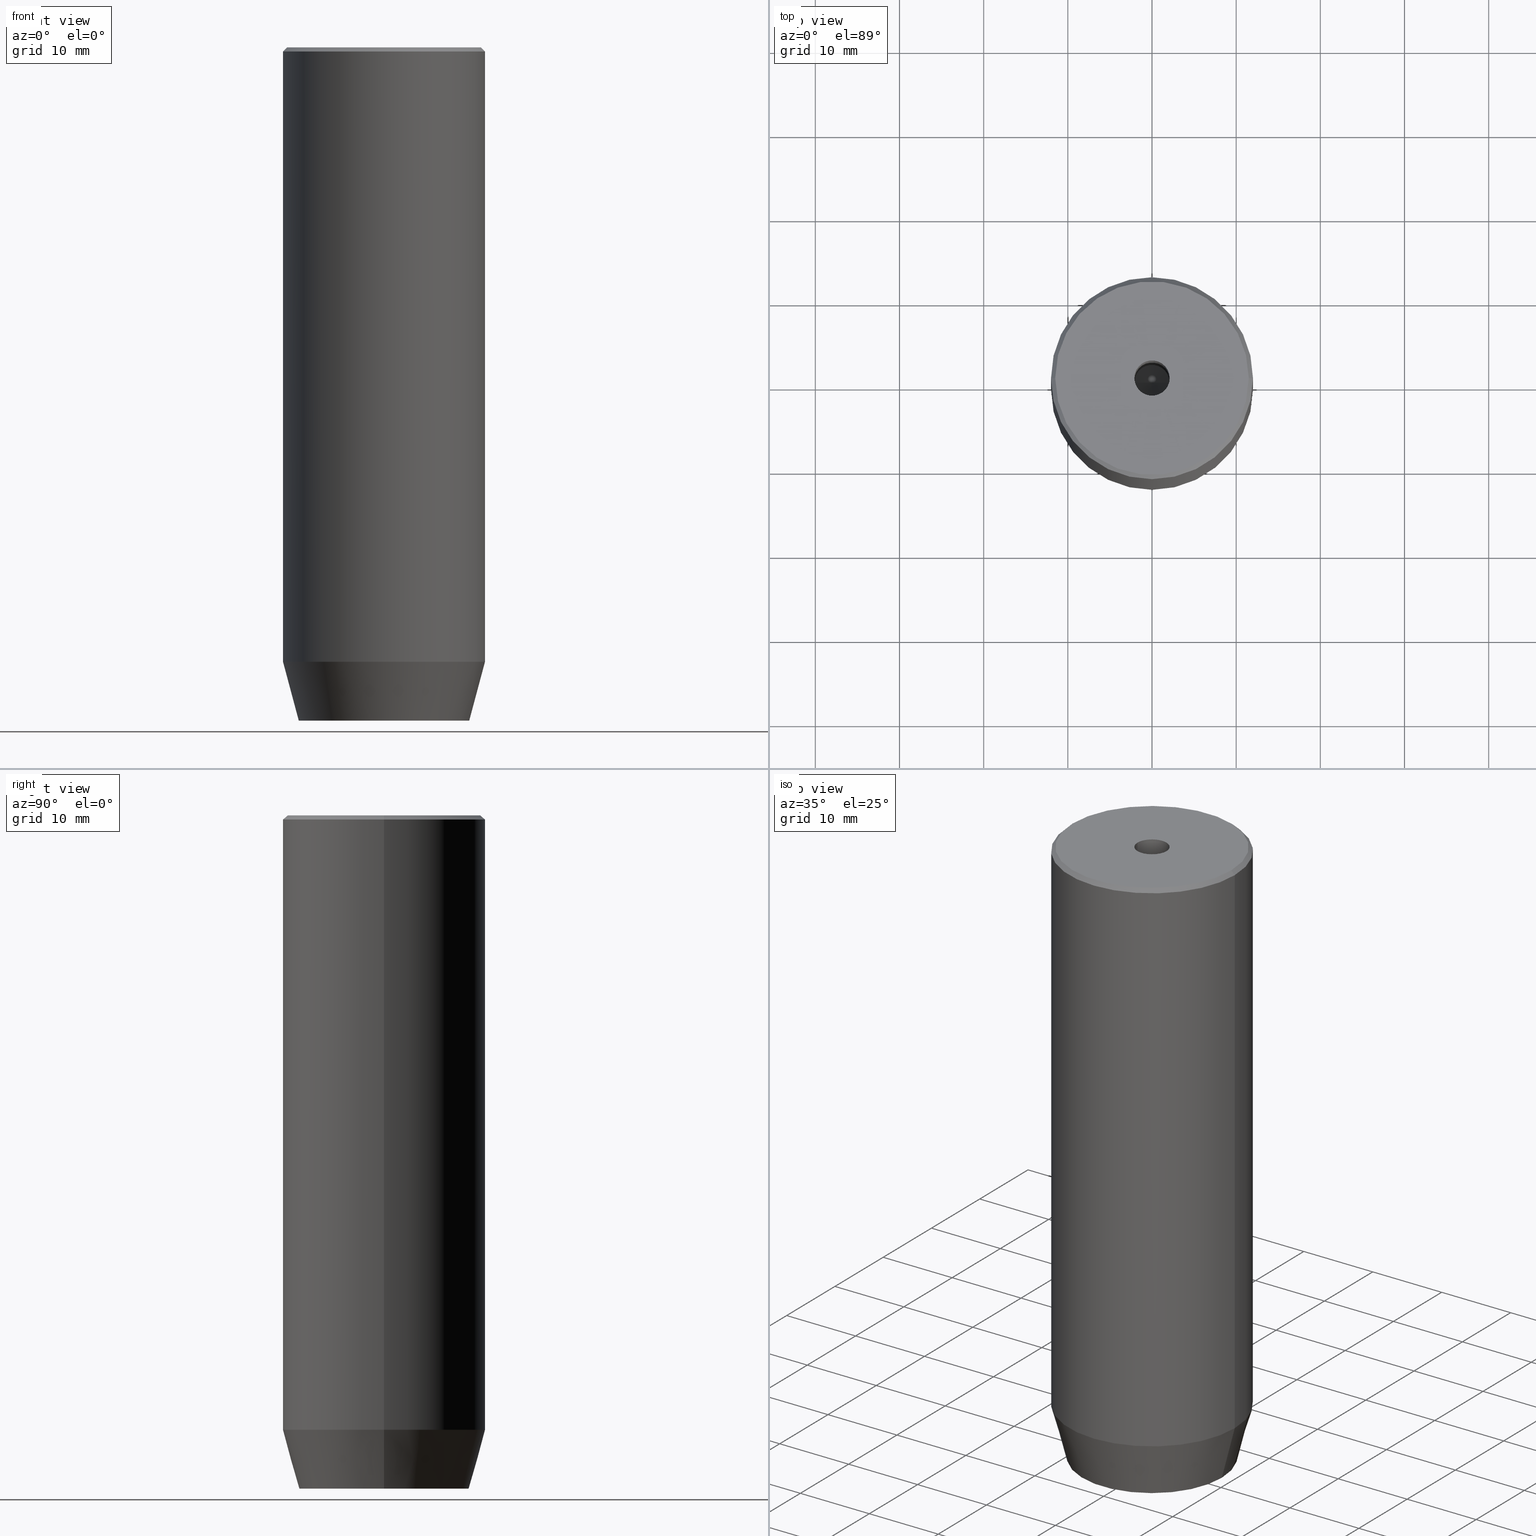
[diagram: canonical four-view strip — front | top / right | iso, engineering-drawing reading convention]
A machine part, canonical four-view strip (front | top / right | iso — engineering-drawing reading convention). The complete STEP part file that produces these views, byte-faithful:
ISO-10303-21;
HEADER;
FILE_DESCRIPTION (( 'STEP AP203' ),
    '1' );
FILE_NAME ('f297.STEP',
    '2024-01-02T17:16:45',
    ( '' ),
    ( '' ),
    'SwSTEP 2.0',
    'SolidWorks 2019',
    '' );
FILE_SCHEMA (( 'CONFIG_CONTROL_DESIGN' ));
ENDSEC;

DATA;
#1 = CARTESIAN_POINT ( 'NONE',  ( 0.000000000000000000, 0.000000000000000000, 0.000000000000000000 ) ) ;
#2 = LINE ( 'NONE', #273, #563 ) ;
#3 = EDGE_LOOP ( 'NONE', ( #304, #363 ) ) ;
#4 = FACE_OUTER_BOUND ( 'NONE', #197, .T. ) ;
#5 = VECTOR ( 'NONE', #537, 999.9999999999998863 ) ;
#6 = DIRECTION ( 'NONE',  ( 1.000000000000000000, 0.000000000000000000, 0.000000000000000000 ) ) ;
#7 = ADVANCED_FACE ( 'NONE', ( #344 ), #295, .F. ) ;
#8 = CC_DESIGN_PERSON_AND_ORGANIZATION_ASSIGNMENT ( #240, #101, ( #432 ) ) ;
#9 = DIRECTION ( 'NONE',  ( -0.000000000000000000, -0.000000000000000000, 1.000000000000000000 ) ) ;
#10 = VECTOR ( 'NONE', #245, 1000.000000000000000 ) ;
#11 = VECTOR ( 'NONE', #541, 1000.000000000000000 ) ;
#12 = LOCAL_TIME ( 18, 16, 45.00000000000000000, #557 ) ;
#13 = PERSON_AND_ORGANIZATION_ROLE ( 'classification_officer' ) ;
#14 = DIRECTION ( 'NONE',  ( 0.8660254037844385966, -0.5000000000000001110, 0.000000000000000000 ) ) ;
#15 = PERSON_AND_ORGANIZATION_ROLE ( 'creator' ) ;
#16 = ORIENTED_EDGE ( 'NONE', *, *, #45, .F. ) ;
#17 = DIRECTION ( 'NONE',  ( 1.000000000000000000, 0.000000000000000000, 0.000000000000000000 ) ) ;
#18 = PERSON_AND_ORGANIZATION ( #511, #53 ) ;
#19 = ORIENTED_EDGE ( 'NONE', *, *, #395, .T. ) ;
#20 = CARTESIAN_POINT ( 'NONE',  ( -2.000000000000000888, -3.464101615137754386, -77.20000000000001705 ) ) ;
#21 = VECTOR ( 'NONE', #281, 1000.000000000000114 ) ;
#22 = APPROVAL_ROLE ( '' ) ;
#23 = ORIENTED_EDGE ( 'NONE', *, *, #370, .T. ) ;
#24 = DIRECTION ( 'NONE',  ( -0.8660254037844385966, 0.5000000000000001110, 0.000000000000000000 ) ) ;
#25 = ORIENTED_EDGE ( 'NONE', *, *, #501, .T. ) ;
#26 = DIRECTION ( 'NONE',  ( -0.8660254037844384856, 0.5000000000000002220, 0.000000000000000000 ) ) ;
#27 = EDGE_LOOP ( 'NONE', ( #191, #413, #300, #549 ) ) ;
#28 = CARTESIAN_POINT ( 'NONE',  ( 4.000000000000000000, -2.309401076758502480, -77.20000000000001705 ) ) ;
#29 = CIRCLE ( 'NONE', #478, 12.00000000000000000 ) ;
#30 = CARTESIAN_POINT ( 'NONE',  ( -2.000000000000000888, -3.464101615137754386, -77.20000000000001705 ) ) ;
#31 = CIRCLE ( 'NONE', #378, 2.099999999999998757 ) ;
#32 = LINE ( 'NONE', #392, #205 ) ;
#33 = DIRECTION ( 'NONE',  ( 1.000000000000000000, 0.000000000000000000, 0.000000000000000000 ) ) ;
#34 = CARTESIAN_POINT ( 'NONE',  ( 0.000000000000000000, 0.000000000000000000, 0.000000000000000000 ) ) ;
#35 = ORIENTED_EDGE ( 'NONE', *, *, #430, .F. ) ;
#36 = DIRECTION ( 'NONE',  ( -0.000000000000000000, -0.000000000000000000, -1.000000000000000000 ) ) ;
#37 = VERTEX_POINT ( 'NONE', #348 ) ;
#38 = FACE_OUTER_BOUND ( 'NONE', #200, .T. ) ;
#39 = ORIENTED_EDGE ( 'NONE', *, *, #501, .F. ) ;
#40 = FACE_BOUND ( 'NONE', #351, .T. ) ;
#41 =( NAMED_UNIT ( * ) PLANE_ANGLE_UNIT ( ) SI_UNIT ( $, .RADIAN. ) );
#42 = ORIENTED_EDGE ( 'NONE', *, *, #465, .F. ) ;
#43 = LINE ( 'NONE', #504, #420 ) ;
#44 = ORIENTED_EDGE ( 'NONE', *, *, #121, .T. ) ;
#45 = EDGE_CURVE ( 'NONE', #462, #450, #527, .T. ) ;
#46 = CIRCLE ( 'NONE', #357, 11.49999999999999467 ) ;
#47 = ORIENTED_EDGE ( 'NONE', *, *, #372, .F. ) ;
#48 = EDGE_CURVE ( 'NONE', #540, #493, #112, .T. ) ;
#49 = CARTESIAN_POINT ( 'NONE',  ( 0.000000000000000000, 0.000000000000000000, -73.00000000000001421 ) ) ;
#50 = DIRECTION ( 'NONE',  ( -0.000000000000000000, -0.000000000000000000, 1.000000000000000000 ) ) ;
#51 = CARTESIAN_POINT ( 'NONE',  ( -12.00000000000000000, 1.469576158976823947E-15, -0.5000000000000056621 ) ) ;
#52 = CONICAL_SURFACE ( 'NONE', #314, 11.49999999999999467, 0.7853981633974482790 ) ;
#53 = ORGANIZATION ( 'NEUR�EN�', 'NEUR�EN�', '' ) ;
#54 = COORDINATED_UNIVERSAL_TIME_OFFSET ( 1, 0, .AHEAD. ) ;
#55 = ORIENTED_EDGE ( 'NONE', *, *, #124, .T. ) ;
#56 = CARTESIAN_POINT ( 'NONE',  ( 2.000000000000000444, 3.464101615137754386, -77.20000000000001705 ) ) ;
#57 = SHAPE_DEFINITION_REPRESENTATION ( #584, #308 ) ;
#58 = ORIENTED_EDGE ( 'NONE', *, *, #48, .T. ) ;
#59 = LINE ( 'NONE', #56, #73 ) ;
#60 = CALENDAR_DATE ( 2024, 2, 1 ) ;
#61 = EDGE_LOOP ( 'NONE', ( #120, #39, #297, #352 ) ) ;
#62 = FACE_OUTER_BOUND ( 'NONE', #347, .T. ) ;
#63 = CC_DESIGN_PERSON_AND_ORGANIZATION_ASSIGNMENT ( #325, #423, ( #432 ) ) ;
#64 = VECTOR ( 'NONE', #26, 1000.000000000000114 ) ;
#65 = APPROVAL_STATUS ( 'not_yet_approved' ) ;
#66 = EDGE_CURVE ( 'NONE', #249, #104, #216, .T. ) ;
#67 = ORIENTED_EDGE ( 'NONE', *, *, #268, .T. ) ;
#68 = CARTESIAN_POINT ( 'NONE',  ( -4.000000000000000000, -2.309401076758503368, -77.20000000000001705 ) ) ;
#69 = LINE ( 'NONE', #358, #367 ) ;
#70 = DIRECTION ( 'NONE',  ( -0.000000000000000000, -0.000000000000000000, 1.000000000000000000 ) ) ;
#71 = DIRECTION ( 'NONE',  ( 0.000000000000000000, 0.000000000000000000, -1.000000000000000000 ) ) ;
#72 = PLANE ( 'NONE',  #108 ) ;
#73 = VECTOR ( 'NONE', #14, 1000.000000000000000 ) ;
#74 = CARTESIAN_POINT ( 'NONE',  ( 0.000000000000000000, 0.000000000000000000, -30.00000000000000000 ) ) ;
#75 = DIRECTION ( 'NONE',  ( -0.000000000000000000, -0.000000000000000000, -1.000000000000000000 ) ) ;
#76 = VERTEX_POINT ( 'NONE', #443 ) ;
#77 = DIRECTION ( 'NONE',  ( -1.000000000000000000, 0.000000000000000000, 0.000000000000000000 ) ) ;
#78 = PLANE ( 'NONE',  #402 ) ;
#79 = CARTESIAN_POINT ( 'NONE',  ( 0.000000000000000000, 0.000000000000000000, 0.000000000000000000 ) ) ;
#80 = EDGE_LOOP ( 'NONE', ( #471, #114, #144, #133 ) ) ;
#81 = DIRECTION ( 'NONE',  ( -0.000000000000000000, -0.000000000000000000, 1.000000000000000000 ) ) ;
#82 = AXIS2_PLACEMENT_3D ( 'NONE', #494, #81, #452 ) ;
#83 = CARTESIAN_POINT ( 'NONE',  ( -12.00000000000000000, 1.469576158976823947E-15, 0.000000000000000000 ) ) ;
#84 = SECURITY_CLASSIFICATION ( '', '', #559 ) ;
#85 = ORIENTED_EDGE ( 'NONE', *, *, #66, .F. ) ;
#86 = LINE ( 'NONE', #322, #343 ) ;
#87 = ORIENTED_EDGE ( 'NONE', *, *, #321, .F. ) ;
#88 = ADVANCED_FACE ( 'NONE', ( #254 ), #78, .F. ) ;
#89 = CARTESIAN_POINT ( 'NONE',  ( -2.000000000000000000, 3.464101615137754830, -77.20000000000001705 ) ) ;
#90 = ORIENTED_EDGE ( 'NONE', *, *, #522, .T. ) ;
#91 = EDGE_CURVE ( 'NONE', #428, #76, #576, .T. ) ;
#92 = CARTESIAN_POINT ( 'NONE',  ( -4.000000000000000000, 2.309401076758503368, -77.20000000000001705 ) ) ;
#93 = VECTOR ( 'NONE', #113, 1000.000000000000000 ) ;
#94 = ORIENTED_EDGE ( 'NONE', *, *, #395, .F. ) ;
#95 = APPLICATION_CONTEXT ( 'configuration controlled 3d designs of mechanical parts and assemblies' ) ;
#96 = DIRECTION ( 'NONE',  ( 1.000000000000000000, 0.000000000000000000, 0.000000000000000000 ) ) ;
#97 = CARTESIAN_POINT ( 'NONE',  ( 4.336808689942017736E-16, -4.618802153517006737, -77.20000000000001705 ) ) ;
#98 = DIRECTION ( 'NONE',  ( 0.000000000000000000, 0.000000000000000000, 1.000000000000000000 ) ) ;
#99 = LINE ( 'NONE', #565, #21 ) ;
#100 = VECTOR ( 'NONE', #517, 1000.000000000000114 ) ;
#101 = PERSON_AND_ORGANIZATION_ROLE ( 'creator' ) ;
#102 = EDGE_LOOP ( 'NONE', ( #182, #67, #269 ) ) ;
#103 = LINE ( 'NONE', #284, #272 ) ;
#104 = VERTEX_POINT ( 'NONE', #580 ) ;
#105 = PLANE ( 'NONE',  #431 ) ;
#106 = DIRECTION ( 'NONE',  ( 1.000000000000000000, 0.000000000000000000, 0.000000000000000000 ) ) ;
#107 = ORIENTED_EDGE ( 'NONE', *, *, #275, .T. ) ;
#108 = AXIS2_PLACEMENT_3D ( 'NONE', #581, #441, #359 ) ;
#109 = ORIENTED_EDGE ( 'NONE', *, *, #91, .T. ) ;
#110 = LINE ( 'NONE', #579, #186 ) ;
#111 = EDGE_CURVE ( 'NONE', #567, #524, #545, .T. ) ;
#112 = LINE ( 'NONE', #213, #195 ) ;
#113 = DIRECTION ( 'NONE',  ( 0.8571673007021113344, 0.000000000000000000, 0.5150380749100558209 ) ) ;
#114 = ORIENTED_EDGE ( 'NONE', *, *, #562, .T. ) ;
#115 = FACE_OUTER_BOUND ( 'NONE', #324, .T. ) ;
#116 = AXIS2_PLACEMENT_3D ( 'NONE', #1, #176, #263 ) ;
#117 = DIRECTION ( 'NONE',  ( -0.000000000000000000, -0.000000000000000000, 1.000000000000000000 ) ) ;
#118 = DIRECTION ( 'NONE',  ( -1.000000000000000000, 0.000000000000000000, 0.000000000000000000 ) ) ;
#119 = PRODUCT ( 'f297', 'f297', '', ( #384 ) ) ;
#120 = ORIENTED_EDGE ( 'NONE', *, *, #140, .F. ) ;
#121 = EDGE_CURVE ( 'NONE', #366, #153, #361, .T. ) ;
#122 = ORIENTED_EDGE ( 'NONE', *, *, #520, .F. ) ;
#123 = DIRECTION ( 'NONE',  ( 1.000000000000000000, 0.000000000000000000, 0.000000000000000000 ) ) ;
#124 = EDGE_CURVE ( 'NONE', #290, #225, #447, .T. ) ;
#125 = FACE_OUTER_BOUND ( 'NONE', #27, .T. ) ;
#126 = DIRECTION ( 'NONE',  ( -0.000000000000000000, -0.000000000000000000, 1.000000000000000000 ) ) ;
#127 = VERTEX_POINT ( 'NONE', #398 ) ;
#128 = VECTOR ( 'NONE', #400, 1000.000000000000000 ) ;
#129 = CARTESIAN_POINT ( 'NONE',  ( -4.000000000000000000, -2.309401076758503368, -77.20000000000001705 ) ) ;
#130 = AXIS2_PLACEMENT_3D ( 'NONE', #136, #126, #318 ) ;
#131 = ORIENTED_EDGE ( 'NONE', *, *, #222, .T. ) ;
#132 = DIRECTION ( 'NONE',  ( 1.000000000000000000, 0.000000000000000000, 0.000000000000000000 ) ) ;
#133 = ORIENTED_EDGE ( 'NONE', *, *, #426, .T. ) ;
#134 = CARTESIAN_POINT ( 'NONE',  ( 12.00000000000000000, 0.000000000000000000, -73.00000000000001421 ) ) ;
#135 = ORIENTED_EDGE ( 'NONE', *, *, #48, .F. ) ;
#136 = CARTESIAN_POINT ( 'NONE',  ( 0.000000000000000000, 0.000000000000000000, -73.00000000000001421 ) ) ;
#137 = VECTOR ( 'NONE', #237, 1000.000000000000000 ) ;
#138 = CALENDAR_DATE ( 2024, 2, 1 ) ;
#139 = PRODUCT_RELATED_PRODUCT_CATEGORY ( 'detail', '', ( #119 ) ) ;
#140 = EDGE_CURVE ( 'NONE', #256, #104, #69, .T. ) ;
#141 = DIRECTION ( 'NONE',  ( 0.000000000000000000, 1.000000000000000000, 0.000000000000000000 ) ) ;
#142 = CC_DESIGN_PERSON_AND_ORGANIZATION_ASSIGNMENT ( #474, #15, ( #455 ) ) ;
#143 = APPROVAL_ROLE ( '' ) ;
#144 = ORIENTED_EDGE ( 'NONE', *, *, #473, .T. ) ;
#145 = LINE ( 'NONE', #20, #64 ) ;
#146 = VECTOR ( 'NONE', #391, 1000.000000000000114 ) ;
#147 = CC_DESIGN_SECURITY_CLASSIFICATION ( #84, ( #432 ) ) ;
#148 = APPROVAL ( #65, 'NEUR�EN�' ) ;
#149 = DATE_AND_TIME ( #556, #332 ) ;
#150 = EDGE_CURVE ( 'NONE', #462, #540, #578, .T. ) ;
#151 = DIRECTION ( 'NONE',  ( 1.000000000000000000, 0.000000000000000000, 0.000000000000000000 ) ) ;
#152 = APPROVAL_DATE_TIME ( #149, #346 ) ;
#153 = VERTEX_POINT ( 'NONE', #572 ) ;
#154 = DIRECTION ( 'NONE',  ( 0.000000000000000000, 0.000000000000000000, -1.000000000000000000 ) ) ;
#155 = ORIENTED_EDGE ( 'NONE', *, *, #189, .T. ) ;
#156 = DIRECTION ( 'NONE',  ( 0.000000000000000000, 0.000000000000000000, 1.000000000000000000 ) ) ;
#157 = AXIS2_PLACEMENT_3D ( 'NONE', #568, #154, #521 ) ;
#158 = LOCAL_TIME ( 18, 16, 45.00000000000000000, #54 ) ;
#159 = ADVANCED_FACE ( 'NONE', ( #364 ), #409, .T. ) ;
#160 = ORIENTED_EDGE ( 'NONE', *, *, #189, .F. ) ;
#161 = PLANE ( 'NONE',  #525 ) ;
#162 = ADVANCED_FACE ( 'NONE', ( #125 ), #309, .T. ) ;
#163 = CARTESIAN_POINT ( 'NONE',  ( 2.000000000000000888, -3.464101615137754386, -77.20000000000001705 ) ) ;
#164 = CARTESIAN_POINT ( 'NONE',  ( 0.000000000000000000, 0.000000000000000000, -80.00000000000001421 ) ) ;
#165 = DIRECTION ( 'NONE',  ( -0.000000000000000000, -0.000000000000000000, -1.000000000000000000 ) ) ;
#166 = FACE_OUTER_BOUND ( 'NONE', #373, .T. ) ;
#167 = ORIENTED_EDGE ( 'NONE', *, *, #310, .T. ) ;
#168 = VECTOR ( 'NONE', #577, 1000.000000000000000 ) ;
#169 = DIRECTION ( 'NONE',  ( 0.7071067811865474617, 8.659560562354932858E-17, -0.7071067811865474617 ) ) ;
#170 = APPROVAL_PERSON_ORGANIZATION ( #18, #328, #279 ) ;
#171 = CARTESIAN_POINT ( 'NONE',  ( 2.000000000000000888, -3.464101615137754386, -77.20000000000001705 ) ) ;
#172 = ADVANCED_FACE ( 'NONE', ( #40, #220 ), #338, .T. ) ;
#173 = ORIENTED_EDGE ( 'NONE', *, *, #302, .F. ) ;
#174 = DIRECTION ( 'NONE',  ( -0.000000000000000000, -0.000000000000000000, -1.000000000000000000 ) ) ;
#175 = DIRECTION ( 'NONE',  ( 0.8660254037844385966, -0.5000000000000001110, 0.000000000000000000 ) ) ;
#176 = DIRECTION ( 'NONE',  ( -0.000000000000000000, -0.000000000000000000, 1.000000000000000000 ) ) ;
#177 = DIRECTION ( 'NONE',  ( -0.000000000000000000, -0.000000000000000000, 1.000000000000000000 ) ) ;
#178 = ORIENTED_EDGE ( 'NONE', *, *, #121, .F. ) ;
#179 = VECTOR ( 'NONE', #418, 1000.000000000000000 ) ;
#180 = DIRECTION ( 'NONE',  ( 0.000000000000000000, 1.000000000000000000, 0.000000000000000000 ) ) ;
#181 = ADVANCED_FACE ( 'NONE', ( #429 ), #280, .F. ) ;
#182 = ORIENTED_EDGE ( 'NONE', *, *, #419, .F. ) ;
#183 = DIRECTION ( 'NONE',  ( 1.000000000000000000, 0.000000000000000000, 0.000000000000000000 ) ) ;
#184 = ORIENTED_EDGE ( 'NONE', *, *, #520, .T. ) ;
#185 = DIRECTION ( 'NONE',  ( 1.000000000000000000, 0.000000000000000000, 0.000000000000000000 ) ) ;
#186 = VECTOR ( 'NONE', #36, 1000.000000000000000 ) ;
#187 = CIRCLE ( 'NONE', #130, 12.00000000000000000 ) ;
#188 = CARTESIAN_POINT ( 'NONE',  ( 4.000000000000000000, -2.309401076758502480, -77.20000000000001705 ) ) ;
#189 = EDGE_CURVE ( 'NONE', #225, #551, #145, .T. ) ;
#190 = PERSON_AND_ORGANIZATION ( #511, #53 ) ;
#191 = ORIENTED_EDGE ( 'NONE', *, *, #552, .T. ) ;
#192 = DIRECTION ( 'NONE',  ( 0.5000000000000001110, 0.8660254037844385966, -0.000000000000000000 ) ) ;
#193 = ORIENTED_EDGE ( 'NONE', *, *, #329, .T. ) ;
#194 = FACE_OUTER_BOUND ( 'NONE', #500, .T. ) ;
#195 = VECTOR ( 'NONE', #174, 1000.000000000000000 ) ;
#196 = PERSON_AND_ORGANIZATION ( #511, #53 ) ;
#197 = EDGE_LOOP ( 'NONE', ( #244, #223, #305, #371 ) ) ;
#198 = DIRECTION ( 'NONE',  ( 0.000000000000000000, 0.000000000000000000, -1.000000000000000000 ) ) ;
#199 = CC_DESIGN_PERSON_AND_ORGANIZATION_ASSIGNMENT ( #510, #238, ( #119 ) ) ;
#200 = EDGE_LOOP ( 'NONE', ( #25, #339 ) ) ;
#201 = CARTESIAN_POINT ( 'NONE',  ( -12.00000000000000000, 1.469576158976823947E-15, -73.00000000000001421 ) ) ;
#202 = EDGE_CURVE ( 'NONE', #256, #127, #468, .T. ) ;
#203 = ORIENTED_EDGE ( 'NONE', *, *, #531, .F. ) ;
#204 = DIRECTION ( 'NONE',  ( 0.2588190451025209060, 0.000000000000000000, 0.9659258262890682012 ) ) ;
#205 = VECTOR ( 'NONE', #399, 1000.000000000000000 ) ;
#206 = LOCAL_TIME ( 18, 16, 45.00000000000000000, #515 ) ;
#207 = DIRECTION ( 'NONE',  ( -0.5000000000000003331, -0.8660254037844385966, 0.000000000000000000 ) ) ;
#208 = FACE_OUTER_BOUND ( 'NONE', #259, .T. ) ;
#209 = CC_DESIGN_DATE_AND_TIME_ASSIGNMENT ( #326, #427, ( #455 ) ) ;
#210 = DIRECTION ( 'NONE',  ( -0.8660254037844384856, -0.5000000000000002220, 0.000000000000000000 ) ) ;
#211 = DIRECTION ( 'NONE',  ( 0.000000000000000000, 0.000000000000000000, -1.000000000000000000 ) ) ;
#212 = ORIENTED_EDGE ( 'NONE', *, *, #202, .F. ) ;
#213 = CARTESIAN_POINT ( 'NONE',  ( 0.000000000000000000, 4.618802153517006737, -77.20000000000001705 ) ) ;
#214 = LINE ( 'NONE', #28, #168 ) ;
#215 = ORIENTED_EDGE ( 'NONE', *, *, #45, .T. ) ;
#216 = CIRCLE ( 'NONE', #449, 12.00000000000000000 ) ;
#217 = CIRCLE ( 'NONE', #523, 10.12435565298213902 ) ;
#218 = ORIENTED_EDGE ( 'NONE', *, *, #140, .T. ) ;
#219 = LINE ( 'NONE', #298, #414 ) ;
#220 = FACE_OUTER_BOUND ( 'NONE', #307, .T. ) ;
#221 = LINE ( 'NONE', #365, #514 ) ;
#222 = EDGE_CURVE ( 'NONE', #540, #337, #59, .T. ) ;
#223 = ORIENTED_EDGE ( 'NONE', *, *, #372, .T. ) ;
#224 = DIRECTION ( 'NONE',  ( -0.5000000000000000000, 0.8660254037844387076, 0.000000000000000000 ) ) ;
#225 = VERTEX_POINT ( 'NONE', #97 ) ;
#226 = VECTOR ( 'NONE', #75, 1000.000000000000000 ) ;
#227 = CARTESIAN_POINT ( 'NONE',  ( 2.099999999999998757, 0.000000000000000000, -1.990051048614449116E-16 ) ) ;
#228 = EDGE_LOOP ( 'NONE', ( #406, #355, #90, #42 ) ) ;
#229 = ADVANCED_FACE ( 'NONE', ( #194 ), #376, .F. ) ;
#230 = LINE ( 'NONE', #83, #11 ) ;
#231 = CALENDAR_DATE ( 2024, 2, 1 ) ;
#232 = AXIS2_PLACEMENT_3D ( 'NONE', #407, #255, #526 ) ;
#233 = CC_DESIGN_APPROVAL ( #328, ( #84 ) ) ;
#234 = CARTESIAN_POINT ( 'NONE',  ( 11.49999999999999467, 1.438959988998139766E-15, 0.000000000000000000 ) ) ;
#235 = DATE_AND_TIME ( #566, #158 ) ;
#236 = ORIENTED_EDGE ( 'NONE', *, *, #124, .F. ) ;
#237 = DIRECTION ( 'NONE',  ( -0.8571673007021113344, 1.049727191138617463E-16, 0.5150380749100558209 ) ) ;
#238 = PERSON_AND_ORGANIZATION_ROLE ( 'design_owner' ) ;
#239 = PLANE ( 'NONE',  #157 ) ;
#240 = PERSON_AND_ORGANIZATION ( #511, #53 ) ;
#241 = PLANE ( 'NONE',  #555 ) ;
#242 = AXIS2_PLACEMENT_3D ( 'NONE', #532, #117, #491 ) ;
#243 = CIRCLE ( 'NONE', #262, 10.12435565298213902 ) ;
#244 = ORIENTED_EDGE ( 'NONE', *, *, #370, .F. ) ;
#245 = DIRECTION ( 'NONE',  ( 0.000000000000000000, -1.000000000000000000, 0.000000000000000000 ) ) ;
#246 = CARTESIAN_POINT ( 'NONE',  ( -4.000000000000000000, 2.309401076758503368, -77.20000000000001705 ) ) ;
#247 = APPLICATION_CONTEXT ( 'configuration controlled 3d designs of mechanical parts and assemblies' ) ;
#248 = FACE_OUTER_BOUND ( 'NONE', #61, .T. ) ;
#249 = VERTEX_POINT ( 'NONE', #51 ) ;
#250 = FACE_OUTER_BOUND ( 'NONE', #416, .T. ) ;
#251 = AXIS2_PLACEMENT_3D ( 'NONE', #34, #211, #118 ) ;
#252 = CARTESIAN_POINT ( 'NONE',  ( 4.000000000000000000, 0.000000000000000000, -80.00000000000001421 ) ) ;
#253 = DIRECTION ( 'NONE',  ( 0.8660254037844384856, 0.5000000000000002220, 0.000000000000000000 ) ) ;
#254 = FACE_OUTER_BOUND ( 'NONE', #274, .T. ) ;
#255 = DIRECTION ( 'NONE',  ( 1.000000000000000000, 0.000000000000000000, -0.000000000000000000 ) ) ;
#256 = VERTEX_POINT ( 'NONE', #234 ) ;
#257 = ORIENTED_EDGE ( 'NONE', *, *, #302, .T. ) ;
#258 = FACE_BOUND ( 'NONE', #3, .T. ) ;
#259 = EDGE_LOOP ( 'NONE', ( #403, #203, #331, #542 ) ) ;
#260 = EDGE_CURVE ( 'NONE', #475, #539, #386, .T. ) ;
#261 = VECTOR ( 'NONE', #141, 1000.000000000000000 ) ;
#262 = AXIS2_PLACEMENT_3D ( 'NONE', #164, #586, #123 ) ;
#263 = DIRECTION ( 'NONE',  ( 1.000000000000000000, 0.000000000000000000, 0.000000000000000000 ) ) ;
#264 = CIRCLE ( 'NONE', #534, 2.099999999999994760 ) ;
#265 = CARTESIAN_POINT ( 'NONE',  ( 0.000000000000000000, 0.000000000000000000, -80.00000000000001421 ) ) ;
#266 = ORIENTED_EDGE ( 'NONE', *, *, #310, .F. ) ;
#267 = DIRECTION ( 'NONE',  ( -0.000000000000000000, -0.000000000000000000, 1.000000000000000000 ) ) ;
#268 = EDGE_CURVE ( 'NONE', #37, #567, #433, .T. ) ;
#269 = ORIENTED_EDGE ( 'NONE', *, *, #111, .T. ) ;
#270 = ORIENTED_EDGE ( 'NONE', *, *, #222, .F. ) ;
#271 = DESIGN_CONTEXT ( 'detailed design', #95, 'design' ) ;
#272 = VECTOR ( 'NONE', #472, 1000.000000000000000 ) ;
#273 = CARTESIAN_POINT ( 'NONE',  ( 12.00000000000000000, 0.000000000000000000, 0.000000000000000000 ) ) ;
#274 = EDGE_LOOP ( 'NONE', ( #44, #87, #160, #19 ) ) ;
#275 = EDGE_CURVE ( 'NONE', #76, #366, #99, .T. ) ;
#276 = ADVANCED_FACE ( 'NONE', ( #62 ), #241, .F. ) ;
#277 = CARTESIAN_POINT ( 'NONE',  ( -10.12435565298213902, 1.354726066681111444E-15, -80.00000000000001421 ) ) ;
#278 = CARTESIAN_POINT ( 'NONE',  ( -4.000000000000000000, 0.000000000000000000, -77.20000000000001705 ) ) ;
#279 = APPROVAL_ROLE ( '' ) ;
#280 = CONICAL_SURFACE ( 'NONE', #356, 2.099999999999994760, 1.029744258676652535 ) ;
#281 = DIRECTION ( 'NONE',  ( -0.8660254037844384856, -0.5000000000000002220, 0.000000000000000000 ) ) ;
#282 = APPROVAL_DATE_TIME ( #235, #328 ) ;
#283 = ORIENTED_EDGE ( 'NONE', *, *, #150, .T. ) ;
#284 = CARTESIAN_POINT ( 'NONE',  ( 4.000000000000000000, 2.309401076758503368, -77.20000000000001705 ) ) ;
#285 = APPLICATION_PROTOCOL_DEFINITION ( 'international standard', 'config_control_design', 1994, #95 ) ;
#286 = VERTEX_POINT ( 'NONE', #201 ) ;
#287 = FACE_OUTER_BOUND ( 'NONE', #411, .T. ) ;
#288 = UNCERTAINTY_MEASURE_WITH_UNIT (LENGTH_MEASURE( 1.000000000000000082E-05 ), #457, 'distance_accuracy_value', 'NONE');
#289 = APPROVAL_STATUS ( 'not_yet_approved' ) ;
#290 = VERTEX_POINT ( 'NONE', #188 ) ;
#291 = LINE ( 'NONE', #68, #226 ) ;
#292 = AXIS2_PLACEMENT_3D ( 'NONE', #74, #529, #33 ) ;
#293 = ADVANCED_FACE ( 'NONE', ( #335 ), #105, .F. ) ;
#294 = EDGE_CURVE ( 'NONE', #337, #290, #380, .T. ) ;
#295 = CYLINDRICAL_SURFACE ( 'NONE', #242, 2.099999999999996980 ) ;
#296 = DIRECTION ( 'NONE',  ( 1.000000000000000000, 0.000000000000000000, 0.000000000000000000 ) ) ;
#297 = ORIENTED_EDGE ( 'NONE', *, *, #299, .T. ) ;
#298 = CARTESIAN_POINT ( 'NONE',  ( 2.000000000000000444, 3.464101615137754386, -80.00000000000001421 ) ) ;
#299 = EDGE_CURVE ( 'NONE', #127, #249, #383, .T. ) ;
#300 = ORIENTED_EDGE ( 'NONE', *, *, #66, .T. ) ;
#301 = FACE_OUTER_BOUND ( 'NONE', #319, .T. ) ;
#302 = EDGE_CURVE ( 'NONE', #551, #462, #422, .T. ) ;
#303 = DIRECTION ( 'NONE',  ( 1.000000000000000000, 0.000000000000000000, 0.000000000000000000 ) ) ;
#304 = ORIENTED_EDGE ( 'NONE', *, *, #260, .F. ) ;
#305 = ORIENTED_EDGE ( 'NONE', *, *, #438, .T. ) ;
#306 = CARTESIAN_POINT ( 'NONE',  ( 0.000000000000000000, 0.000000000000000000, -73.00000000000001421 ) ) ;
#307 = EDGE_LOOP ( 'NONE', ( #313, #47 ) ) ;
#308 = ADVANCED_BREP_SHAPE_REPRESENTATION ( 'f297', ( #508, #469 ), #342 ) ;
#309 = CYLINDRICAL_SURFACE ( 'NONE', #82, 12.00000000000000000 ) ;
#310 = EDGE_CURVE ( 'NONE', #337, #428, #103, .T. ) ;
#311 = CARTESIAN_POINT ( 'NONE',  ( 10.12435565298213902, 0.000000000000000000, -80.00000000000001421 ) ) ;
#312 = CC_DESIGN_PERSON_AND_ORGANIZATION_ASSIGNMENT ( #190, #13, ( #84 ) ) ;
#313 = ORIENTED_EDGE ( 'NONE', *, *, #463, .F. ) ;
#314 = AXIS2_PLACEMENT_3D ( 'NONE', #79, #489, #77 ) ;
#315 = APPROVAL_PERSON_ORGANIZATION ( #196, #148, #143 ) ;
#316 = CARTESIAN_POINT ( 'NONE',  ( -2.099999999999994760, 2.571758278209435054E-16, -30.00000000000000000 ) ) ;
#317 = EDGE_LOOP ( 'NONE', ( #184, #16, #173, #424 ) ) ;
#318 = DIRECTION ( 'NONE',  ( 1.000000000000000000, 0.000000000000000000, 0.000000000000000000 ) ) ;
#319 = EDGE_LOOP ( 'NONE', ( #107, #94, #236, #477 ) ) ;
#320 = ADVANCED_FACE ( 'NONE', ( #287 ), #239, .T. ) ;
#321 = EDGE_CURVE ( 'NONE', #551, #153, #291, .T. ) ;
#322 = CARTESIAN_POINT ( 'NONE',  ( -4.000000000000000000, 0.000000000000000000, -80.00000000000001421 ) ) ;
#323 = ADVANCED_FACE ( 'NONE', ( #258, #38 ), #72, .T. ) ;
#324 = EDGE_LOOP ( 'NONE', ( #109, #35, #560, #167 ) ) ;
#325 = PERSON_AND_ORGANIZATION ( #511, #53 ) ;
#326 = DATE_AND_TIME ( #138, #206 ) ;
#327 = CARTESIAN_POINT ( 'NONE',  ( 0.000000000000000000, 10.12435565298213902, -80.00000000000001421 ) ) ;
#328 = APPROVAL ( #336, 'NEUR�EN�' ) ;
#329 = EDGE_CURVE ( 'NONE', #493, #428, #219, .T. ) ;
#330 = APPLICATION_PROTOCOL_DEFINITION ( 'international standard', 'config_control_design', 1994, #247 ) ;
#331 = ORIENTED_EDGE ( 'NONE', *, *, #465, .T. ) ;
#332 = LOCAL_TIME ( 18, 16, 45.00000000000000000, #434 ) ;
#333 = DIRECTION ( 'NONE',  ( -0.000000000000000000, -0.000000000000000000, 1.000000000000000000 ) ) ;
#334 = APPROVAL_DATE_TIME ( #466, #148 ) ;
#335 = FACE_OUTER_BOUND ( 'NONE', #317, .T. ) ;
#336 = APPROVAL_STATUS ( 'not_yet_approved' ) ;
#337 = VERTEX_POINT ( 'NONE', #448 ) ;
#338 = PLANE ( 'NONE',  #404 ) ;
#339 = ORIENTED_EDGE ( 'NONE', *, *, #202, .T. ) ;
#340 = CARTESIAN_POINT ( 'NONE',  ( 4.000000000000000000, 0.000000000000000000, -77.20000000000001705 ) ) ;
#341 = VECTOR ( 'NONE', #210, 1000.000000000000114 ) ;
#342 =( GEOMETRIC_REPRESENTATION_CONTEXT ( 3 ) GLOBAL_UNCERTAINTY_ASSIGNED_CONTEXT ( ( #288 ) ) GLOBAL_UNIT_ASSIGNED_CONTEXT ( ( #457, #41, #374 ) ) REPRESENTATION_CONTEXT ( 'NONE', 'WORKASPACE' ) );
#343 = VECTOR ( 'NONE', #180, 1000.000000000000000 ) ;
#344 = FACE_OUTER_BOUND ( 'NONE', #228, .T. ) ;
#345 = DIRECTION ( 'NONE',  ( -0.000000000000000000, -0.000000000000000000, 1.000000000000000000 ) ) ;
#346 = APPROVAL ( #289, 'NEUR�EN�' ) ;
#347 = EDGE_LOOP ( 'NONE', ( #193, #266, #270, #58 ) ) ;
#348 = CARTESIAN_POINT ( 'NONE',  ( -7.656934449090954900E-15, 0.000000000000000000, -31.26180729995787289 ) ) ;
#349 = DIRECTION ( 'NONE',  ( 0.000000000000000000, 0.000000000000000000, -1.000000000000000000 ) ) ;
#350 = ADVANCED_FACE ( 'NONE', ( #115 ), #492, .F. ) ;
#351 = EDGE_LOOP ( 'NONE', ( #454, #122, #178, #505, #490, #546 ) ) ;
#352 = ORIENTED_EDGE ( 'NONE', *, *, #426, .F. ) ;
#353 = ADVANCED_FACE ( 'NONE', ( #301 ), #161, .F. ) ;
#354 = CYLINDRICAL_SURFACE ( 'NONE', #451, 2.099999999999996980 ) ;
#355 = ORIENTED_EDGE ( 'NONE', *, *, #458, .T. ) ;
#356 = AXIS2_PLACEMENT_3D ( 'NONE', #435, #480, #513 ) ;
#357 = AXIS2_PLACEMENT_3D ( 'NONE', #544, #499, #183 ) ;
#358 = CARTESIAN_POINT ( 'NONE',  ( 11.49999999999999467, 1.408343819019455584E-15, 0.000000000000000000 ) ) ;
#359 = DIRECTION ( 'NONE',  ( 1.000000000000000000, 0.000000000000000000, 0.000000000000000000 ) ) ;
#360 = ORIENTED_EDGE ( 'NONE', *, *, #531, .T. ) ;
#361 = LINE ( 'NONE', #488, #146 ) ;
#362 = PLANE ( 'NONE',  #394 ) ;
#363 = ORIENTED_EDGE ( 'NONE', *, *, #522, .F. ) ;
#364 = FACE_OUTER_BOUND ( 'NONE', #80, .T. ) ;
#365 = CARTESIAN_POINT ( 'NONE',  ( 2.099999999999996980, 0.000000000000000000, 0.000000000000000000 ) ) ;
#366 = VERTEX_POINT ( 'NONE', #538 ) ;
#367 = VECTOR ( 'NONE', #169, 1000.000000000000114 ) ;
#368 = AXIS2_PLACEMENT_3D ( 'NONE', #49, #415, #96 ) ;
#369 = DIRECTION ( 'NONE',  ( 1.000000000000000000, 0.000000000000000000, 0.000000000000000000 ) ) ;
#370 = EDGE_CURVE ( 'NONE', #481, #286, #32, .T. ) ;
#371 = ORIENTED_EDGE ( 'NONE', *, *, #562, .F. ) ;
#372 = EDGE_CURVE ( 'NONE', #481, #585, #243, .T. ) ;
#373 = EDGE_LOOP ( 'NONE', ( #485, #23, #382, #516 ) ) ;
#374 =( NAMED_UNIT ( * ) SI_UNIT ( $, .STERADIAN. ) SOLID_ANGLE_UNIT ( ) );
#375 = CLOSED_SHELL ( 'NONE', ( #7, #181, #439, #405, #162, #172, #323, #159, #509, #446, #575, #293, #88, #353, #350, #276, #320, #229, #408 ) ) ;
#376 = CONICAL_SURFACE ( 'NONE', #393, 2.099999999999994760, 1.029744258676652535 ) ;
#377 = PERSON_AND_ORGANIZATION ( #511, #53 ) ;
#378 = AXIS2_PLACEMENT_3D ( 'NONE', #548, #412, #369 ) ;
#379 = COORDINATED_UNIVERSAL_TIME_OFFSET ( 1, 0, .AHEAD. ) ;
#380 = LINE ( 'NONE', #340, #10 ) ;
#381 = DATE_AND_TIME ( #60, #12 ) ;
#382 = ORIENTED_EDGE ( 'NONE', *, *, #552, .F. ) ;
#383 = LINE ( 'NONE', #561, #100 ) ;
#384 = MECHANICAL_CONTEXT ( 'NONE', #247, 'mechanical' ) ;
#385 = ORIENTED_EDGE ( 'NONE', *, *, #150, .F. ) ;
#386 = CIRCLE ( 'NONE', #460, 2.099999999999998757 ) ;
#387 = CARTESIAN_POINT ( 'NONE',  ( -2.099999999999994760, 2.571758278209435054E-16, -30.00000000000000000 ) ) ;
#388 = ORIENTED_EDGE ( 'NONE', *, *, #536, .T. ) ;
#389 = DIRECTION ( 'NONE',  ( -1.000000000000000000, 0.000000000000000000, 0.000000000000000000 ) ) ;
#390 = DIRECTION ( 'NONE',  ( -1.000000000000000000, 0.000000000000000000, -0.000000000000000000 ) ) ;
#391 = DIRECTION ( 'NONE',  ( -0.8660254037844384856, 0.5000000000000002220, 0.000000000000000000 ) ) ;
#392 = CARTESIAN_POINT ( 'NONE',  ( -12.00000000000000000, 1.469576158976823947E-15, -73.00000000000001421 ) ) ;
#393 = AXIS2_PLACEMENT_3D ( 'NONE', #467, #333, #106 ) ;
#394 = AXIS2_PLACEMENT_3D ( 'NONE', #89, #224, #410 ) ;
#395 = EDGE_CURVE ( 'NONE', #225, #366, #110, .T. ) ;
#396 = DIRECTION ( 'NONE',  ( 0.8660254037844384856, -0.5000000000000002220, 0.000000000000000000 ) ) ;
#397 = CARTESIAN_POINT ( 'NONE',  ( 0.000000000000000000, 0.000000000000000000, 0.000000000000000000 ) ) ;
#398 = CARTESIAN_POINT ( 'NONE',  ( -11.49999999999999467, 0.000000000000000000, 0.000000000000000000 ) ) ;
#399 = DIRECTION ( 'NONE',  ( -0.2588190451025209060, 3.169619151431766790E-17, 0.9659258262890682012 ) ) ;
#400 = DIRECTION ( 'NONE',  ( 0.000000000000000000, -1.000000000000000000, 0.000000000000000000 ) ) ;
#401 = LINE ( 'NONE', #482, #179 ) ;
#402 = AXIS2_PLACEMENT_3D ( 'NONE', #30, #207, #396 ) ;
#403 = ORIENTED_EDGE ( 'NONE', *, *, #458, .F. ) ;
#404 = AXIS2_PLACEMENT_3D ( 'NONE', #327, #198, #390 ) ;
#405 = ADVANCED_FACE ( 'NONE', ( #166 ), #496, .T. ) ;
#406 = ORIENTED_EDGE ( 'NONE', *, *, #111, .F. ) ;
#407 = CARTESIAN_POINT ( 'NONE',  ( 4.000000000000000000, 0.000000000000000000, -77.20000000000001705 ) ) ;
#408 = ADVANCED_FACE ( 'NONE', ( #208 ), #354, .F. ) ;
#409 = CYLINDRICAL_SURFACE ( 'NONE', #116, 12.00000000000000000 ) ;
#410 = DIRECTION ( 'NONE',  ( -0.8660254037844385966, -0.4999999999999999445, 0.000000000000000000 ) ) ;
#411 = EDGE_LOOP ( 'NONE', ( #283, #131, #503, #55, #155, #257 ) ) ;
#412 = DIRECTION ( 'NONE',  ( -0.000000000000000000, -0.000000000000000000, 1.000000000000000000 ) ) ;
#413 = ORIENTED_EDGE ( 'NONE', *, *, #543, .T. ) ;
#414 = VECTOR ( 'NONE', #175, 1000.000000000000000 ) ;
#415 = DIRECTION ( 'NONE',  ( -0.000000000000000000, -0.000000000000000000, 1.000000000000000000 ) ) ;
#416 = EDGE_LOOP ( 'NONE', ( #212, #218, #85, #587 ) ) ;
#417 = CARTESIAN_POINT ( 'NONE',  ( 0.000000000000000000, 0.000000000000000000, -30.00000000000000000 ) ) ;
#418 = DIRECTION ( 'NONE',  ( -0.000000000000000000, -0.000000000000000000, 1.000000000000000000 ) ) ;
#419 = EDGE_CURVE ( 'NONE', #37, #524, #528, .T. ) ;
#420 = VECTOR ( 'NONE', #554, 999.9999999999998863 ) ;
#421 = CARTESIAN_POINT ( 'NONE',  ( 0.000000000000000000, 0.000000000000000000, 0.000000000000000000 ) ) ;
#422 = LINE ( 'NONE', #278, #261 ) ;
#423 = PERSON_AND_ORGANIZATION_ROLE ( 'design_supplier' ) ;
#424 = ORIENTED_EDGE ( 'NONE', *, *, #321, .T. ) ;
#425 = CARTESIAN_POINT ( 'NONE',  ( 0.000000000000000000, 0.000000000000000000, -1.990051048614449116E-16 ) ) ;
#426 = EDGE_CURVE ( 'NONE', #104, #249, #29, .T. ) ;
#427 = DATE_TIME_ROLE ( 'creation_date' ) ;
#428 = VERTEX_POINT ( 'NONE', #437 ) ;
#429 = FACE_OUTER_BOUND ( 'NONE', #102, .T. ) ;
#430 = EDGE_CURVE ( 'NONE', #290, #76, #214, .T. ) ;
#431 = AXIS2_PLACEMENT_3D ( 'NONE', #570, #389, #156 ) ;
#432 = PRODUCT_DEFINITION_FORMATION_WITH_SPECIFIED_SOURCE ( 'LIBOVOLN�', '', #119, .NOT_KNOWN. ) ;
#433 = LINE ( 'NONE', #387, #137 ) ;
#434 = COORDINATED_UNIVERSAL_TIME_OFFSET ( 1, 0, .AHEAD. ) ;
#435 = CARTESIAN_POINT ( 'NONE',  ( 0.000000000000000000, 0.000000000000000000, -30.00000000000000000 ) ) ;
#436 = CARTESIAN_POINT ( 'NONE',  ( -2.000000000000000000, 3.464101615137754830, -77.20000000000001705 ) ) ;
#437 = CARTESIAN_POINT ( 'NONE',  ( 4.000000000000000000, 2.309401076758503368, -80.00000000000001421 ) ) ;
#438 = EDGE_CURVE ( 'NONE', #585, #497, #484, .T. ) ;
#439 = ADVANCED_FACE ( 'NONE', ( #250 ), #571, .T. ) ;
#440 = DIRECTION ( 'NONE',  ( 1.000000000000000000, 0.000000000000000000, 0.000000000000000000 ) ) ;
#441 = DIRECTION ( 'NONE',  ( 0.000000000000000000, -0.000000000000000000, 1.000000000000000000 ) ) ;
#442 = AXIS2_PLACEMENT_3D ( 'NONE', #306, #70, #574 ) ;
#443 = CARTESIAN_POINT ( 'NONE',  ( 4.000000000000000000, -2.309401076758502480, -80.00000000000001421 ) ) ;
#444 = CARTESIAN_POINT ( 'NONE',  ( 12.00000000000000000, 0.000000000000000000, -73.00000000000001421 ) ) ;
#445 = CARTESIAN_POINT ( 'NONE',  ( -4.000000000000000000, 2.309401076758503368, -80.00000000000001421 ) ) ;
#446 = ADVANCED_FACE ( 'NONE', ( #248 ), #52, .T. ) ;
#447 = LINE ( 'NONE', #163, #341 ) ;
#448 = CARTESIAN_POINT ( 'NONE',  ( 4.000000000000000000, 2.309401076758503368, -77.20000000000001705 ) ) ;
#449 = AXIS2_PLACEMENT_3D ( 'NONE', #483, #71, #440 ) ;
#450 = VERTEX_POINT ( 'NONE', #445 ) ;
#451 = AXIS2_PLACEMENT_3D ( 'NONE', #397, #345, #296 ) ;
#452 = DIRECTION ( 'NONE',  ( 1.000000000000000000, 0.000000000000000000, 0.000000000000000000 ) ) ;
#453 = DIRECTION ( 'NONE',  ( -0.000000000000000000, -0.000000000000000000, 1.000000000000000000 ) ) ;
#454 = ORIENTED_EDGE ( 'NONE', *, *, #536, .F. ) ;
#455 = PRODUCT_DEFINITION ( 'NEZN�M�', '', #432, #271 ) ;
#456 = FACE_OUTER_BOUND ( 'NONE', #535, .T. ) ;
#457 =( LENGTH_UNIT ( ) NAMED_UNIT ( * ) SI_UNIT ( .MILLI., .METRE. ) );
#458 = EDGE_CURVE ( 'NONE', #567, #539, #401, .T. ) ;
#459 = VECTOR ( 'NONE', #165, 1000.000000000000000 ) ;
#460 = AXIS2_PLACEMENT_3D ( 'NONE', #425, #519, #17 ) ;
#461 = CARTESIAN_POINT ( 'NONE',  ( 2.099999999999994760, 0.000000000000000000, -30.00000000000000000 ) ) ;
#462 = VERTEX_POINT ( 'NONE', #92 ) ;
#463 = EDGE_CURVE ( 'NONE', #585, #481, #217, .T. ) ;
#464 = CARTESIAN_POINT ( 'NONE',  ( 0.000000000000000000, 4.618802153517004960, -80.00000000000001421 ) ) ;
#465 = EDGE_CURVE ( 'NONE', #524, #475, #221, .T. ) ;
#466 = DATE_AND_TIME ( #231, #583 ) ;
#467 = CARTESIAN_POINT ( 'NONE',  ( 0.000000000000000000, 0.000000000000000000, -30.00000000000000000 ) ) ;
#468 = CIRCLE ( 'NONE', #506, 11.49999999999999467 ) ;
#469 = AXIS2_PLACEMENT_3D ( 'NONE', #421, #98, #185 ) ;
#470 = CARTESIAN_POINT ( 'NONE',  ( 2.000000000000000444, 3.464101615137754386, -77.20000000000001705 ) ) ;
#471 = ORIENTED_EDGE ( 'NONE', *, *, #543, .F. ) ;
#472 = DIRECTION ( 'NONE',  ( -0.000000000000000000, -0.000000000000000000, -1.000000000000000000 ) ) ;
#473 = EDGE_CURVE ( 'NONE', #497, #104, #2, .T. ) ;
#474 = PERSON_AND_ORGANIZATION ( #511, #53 ) ;
#475 = VERTEX_POINT ( 'NONE', #227 ) ;
#476 = DIRECTION ( 'NONE',  ( -0.000000000000000000, -0.000000000000000000, 1.000000000000000000 ) ) ;
#477 = ORIENTED_EDGE ( 'NONE', *, *, #430, .T. ) ;
#478 = AXIS2_PLACEMENT_3D ( 'NONE', #486, #349, #303 ) ;
#479 = CIRCLE ( 'NONE', #368, 12.00000000000000000 ) ;
#480 = DIRECTION ( 'NONE',  ( -0.000000000000000000, -0.000000000000000000, 1.000000000000000000 ) ) ;
#481 = VERTEX_POINT ( 'NONE', #277 ) ;
#482 = CARTESIAN_POINT ( 'NONE',  ( -2.099999999999996980, 2.571758278209438013E-16, 0.000000000000000000 ) ) ;
#483 = CARTESIAN_POINT ( 'NONE',  ( 0.000000000000000000, 0.000000000000000000, -0.5000000000000056621 ) ) ;
#484 = LINE ( 'NONE', #444, #582 ) ;
#485 = ORIENTED_EDGE ( 'NONE', *, *, #463, .T. ) ;
#486 = CARTESIAN_POINT ( 'NONE',  ( 0.000000000000000000, 0.000000000000000000, -0.5000000000000056621 ) ) ;
#487 = APPROVAL_PERSON_ORGANIZATION ( #377, #346, #22 ) ;
#488 = CARTESIAN_POINT ( 'NONE',  ( -2.000000000000000888, -3.464101615137754386, -80.00000000000001421 ) ) ;
#489 = DIRECTION ( 'NONE',  ( 0.000000000000000000, 0.000000000000000000, -1.000000000000000000 ) ) ;
#490 = ORIENTED_EDGE ( 'NONE', *, *, #91, .F. ) ;
#491 = DIRECTION ( 'NONE',  ( 1.000000000000000000, 0.000000000000000000, 0.000000000000000000 ) ) ;
#492 = PLANE ( 'NONE',  #232 ) ;
#493 = VERTEX_POINT ( 'NONE', #464 ) ;
#494 = CARTESIAN_POINT ( 'NONE',  ( 0.000000000000000000, 0.000000000000000000, 0.000000000000000000 ) ) ;
#495 = CARTESIAN_POINT ( 'NONE',  ( 0.000000000000000000, 4.618802153517006737, -77.20000000000001705 ) ) ;
#496 = CONICAL_SURFACE ( 'NONE', #442, 12.00000000000000000, 0.2617993877991495744 ) ;
#497 = VERTEX_POINT ( 'NONE', #134 ) ;
#498 = CC_DESIGN_APPROVAL ( #148, ( #432 ) ) ;
#499 = DIRECTION ( 'NONE',  ( -0.000000000000000000, -0.000000000000000000, 1.000000000000000000 ) ) ;
#500 = EDGE_LOOP ( 'NONE', ( #518, #569, #360 ) ) ;
#501 = EDGE_CURVE ( 'NONE', #127, #256, #46, .T. ) ;
#502 = CARTESIAN_POINT ( 'NONE',  ( -2.099999999999998757, 2.571758278209440478E-16, -1.990051048614449116E-16 ) ) ;
#503 = ORIENTED_EDGE ( 'NONE', *, *, #294, .T. ) ;
#504 = CARTESIAN_POINT ( 'NONE',  ( -2.000000000000000000, 3.464101615137754830, -80.00000000000001421 ) ) ;
#505 = ORIENTED_EDGE ( 'NONE', *, *, #275, .F. ) ;
#506 = AXIS2_PLACEMENT_3D ( 'NONE', #558, #476, #151 ) ;
#507 = DIRECTION ( 'NONE',  ( 1.000000000000000000, 0.000000000000000000, 0.000000000000000000 ) ) ;
#508 = MANIFOLD_SOLID_BREP ( 'Vrt�k z�vitn�ku pro M5 z�vit1', #375 ) ;
#509 = ADVANCED_FACE ( 'NONE', ( #4 ), #573, .T. ) ;
#510 = PERSON_AND_ORGANIZATION ( #511, #53 ) ;
#511 = PERSON ( 'NEUR�EN�', 'NEUR�EN�', 'NEUR�EN�', ('NEUR�EN�'), ('NEUR�EN�'), ('NEUR�EN�') ) ;
#512 = DATE_TIME_ROLE ( 'classification_date' ) ;
#513 = DIRECTION ( 'NONE',  ( 1.000000000000000000, 0.000000000000000000, 0.000000000000000000 ) ) ;
#514 = VECTOR ( 'NONE', #267, 1000.000000000000000 ) ;
#515 = COORDINATED_UNIVERSAL_TIME_OFFSET ( 1, 0, .AHEAD. ) ;
#516 = ORIENTED_EDGE ( 'NONE', *, *, #438, .F. ) ;
#517 = DIRECTION ( 'NONE',  ( -0.7071067811865474617, 0.000000000000000000, -0.7071067811865474617 ) ) ;
#518 = ORIENTED_EDGE ( 'NONE', *, *, #268, .F. ) ;
#519 = DIRECTION ( 'NONE',  ( -0.000000000000000000, -0.000000000000000000, 1.000000000000000000 ) ) ;
#520 = EDGE_CURVE ( 'NONE', #153, #450, #86, .T. ) ;
#521 = DIRECTION ( 'NONE',  ( -1.000000000000000000, 0.000000000000000000, -0.000000000000000000 ) ) ;
#522 = EDGE_CURVE ( 'NONE', #539, #475, #31, .T. ) ;
#523 = AXIS2_PLACEMENT_3D ( 'NONE', #265, #177, #507 ) ;
#524 = VERTEX_POINT ( 'NONE', #461 ) ;
#525 = AXIS2_PLACEMENT_3D ( 'NONE', #171, #530, #253 ) ;
#526 = DIRECTION ( 'NONE',  ( -0.000000000000000000, 0.000000000000000000, -1.000000000000000000 ) ) ;
#527 = LINE ( 'NONE', #246, #459 ) ;
#528 = LINE ( 'NONE', #533, #93 ) ;
#529 = DIRECTION ( 'NONE',  ( -0.000000000000000000, -0.000000000000000000, 1.000000000000000000 ) ) ;
#530 = DIRECTION ( 'NONE',  ( 0.5000000000000003331, -0.8660254037844385966, 0.000000000000000000 ) ) ;
#531 = EDGE_CURVE ( 'NONE', #524, #567, #264, .T. ) ;
#532 = CARTESIAN_POINT ( 'NONE',  ( 0.000000000000000000, 0.000000000000000000, 0.000000000000000000 ) ) ;
#533 = CARTESIAN_POINT ( 'NONE',  ( 2.099999999999994760, 0.000000000000000000, -30.00000000000000000 ) ) ;
#534 = AXIS2_PLACEMENT_3D ( 'NONE', #417, #453, #132 ) ;
#535 = EDGE_LOOP ( 'NONE', ( #388, #135, #385, #215 ) ) ;
#536 = EDGE_CURVE ( 'NONE', #450, #493, #43, .T. ) ;
#537 = DIRECTION ( 'NONE',  ( 0.8660254037844387076, 0.5000000000000001110, 0.000000000000000000 ) ) ;
#538 = CARTESIAN_POINT ( 'NONE',  ( 4.336808689942017736E-16, -4.618802153517006737, -80.00000000000001421 ) ) ;
#539 = VERTEX_POINT ( 'NONE', #502 ) ;
#540 = VERTEX_POINT ( 'NONE', #495 ) ;
#541 = DIRECTION ( 'NONE',  ( -0.000000000000000000, -0.000000000000000000, 1.000000000000000000 ) ) ;
#542 = ORIENTED_EDGE ( 'NONE', *, *, #260, .T. ) ;
#543 = EDGE_CURVE ( 'NONE', #286, #249, #230, .T. ) ;
#544 = CARTESIAN_POINT ( 'NONE',  ( 0.000000000000000000, 0.000000000000000000, 0.000000000000000000 ) ) ;
#545 = CIRCLE ( 'NONE', #292, 2.099999999999994760 ) ;
#546 = ORIENTED_EDGE ( 'NONE', *, *, #329, .F. ) ;
#547 = CC_DESIGN_APPROVAL ( #346, ( #455 ) ) ;
#548 = CARTESIAN_POINT ( 'NONE',  ( 0.000000000000000000, 0.000000000000000000, -1.990051048614449116E-16 ) ) ;
#549 = ORIENTED_EDGE ( 'NONE', *, *, #473, .F. ) ;
#550 = CARTESIAN_POINT ( 'NONE',  ( 0.000000000000000000, 0.000000000000000000, -73.00000000000001421 ) ) ;
#551 = VERTEX_POINT ( 'NONE', #129 ) ;
#552 = EDGE_CURVE ( 'NONE', #497, #286, #187, .T. ) ;
#553 = CC_DESIGN_DATE_AND_TIME_ASSIGNMENT ( #381, #512, ( #84 ) ) ;
#554 = DIRECTION ( 'NONE',  ( 0.8660254037844387076, 0.5000000000000001110, 0.000000000000000000 ) ) ;
#555 = AXIS2_PLACEMENT_3D ( 'NONE', #470, #192, #24 ) ;
#556 = CALENDAR_DATE ( 2024, 2, 1 ) ;
#557 = COORDINATED_UNIVERSAL_TIME_OFFSET ( 1, 0, .AHEAD. ) ;
#558 = CARTESIAN_POINT ( 'NONE',  ( 0.000000000000000000, 0.000000000000000000, 0.000000000000000000 ) ) ;
#559 = SECURITY_CLASSIFICATION_LEVEL ( 'unclassified' ) ;
#560 = ORIENTED_EDGE ( 'NONE', *, *, #294, .F. ) ;
#561 = CARTESIAN_POINT ( 'NONE',  ( -11.49999999999999467, 0.000000000000000000, 0.000000000000000000 ) ) ;
#562 = EDGE_CURVE ( 'NONE', #286, #497, #479, .T. ) ;
#563 = VECTOR ( 'NONE', #50, 1000.000000000000000 ) ;
#564 = AXIS2_PLACEMENT_3D ( 'NONE', #550, #9, #6 ) ;
#565 = CARTESIAN_POINT ( 'NONE',  ( 2.000000000000000888, -3.464101615137754386, -80.00000000000001421 ) ) ;
#566 = CALENDAR_DATE ( 2024, 2, 1 ) ;
#567 = VERTEX_POINT ( 'NONE', #316 ) ;
#568 = CARTESIAN_POINT ( 'NONE',  ( 0.000000000000000000, 0.000000000000000000, -77.20000000000001705 ) ) ;
#569 = ORIENTED_EDGE ( 'NONE', *, *, #419, .T. ) ;
#570 = CARTESIAN_POINT ( 'NONE',  ( -4.000000000000000000, 0.000000000000000000, -77.20000000000001705 ) ) ;
#571 = CONICAL_SURFACE ( 'NONE', #251, 11.49999999999999467, 0.7853981633974482790 ) ;
#572 = CARTESIAN_POINT ( 'NONE',  ( -4.000000000000000000, -2.309401076758503368, -80.00000000000001421 ) ) ;
#573 = CONICAL_SURFACE ( 'NONE', #564, 12.00000000000000000, 0.2617993877991495744 ) ;
#574 = DIRECTION ( 'NONE',  ( 1.000000000000000000, 0.000000000000000000, 0.000000000000000000 ) ) ;
#575 = ADVANCED_FACE ( 'NONE', ( #456 ), #362, .F. ) ;
#576 = LINE ( 'NONE', #252, #128 ) ;
#577 = DIRECTION ( 'NONE',  ( -0.000000000000000000, -0.000000000000000000, -1.000000000000000000 ) ) ;
#578 = LINE ( 'NONE', #436, #5 ) ;
#579 = CARTESIAN_POINT ( 'NONE',  ( 4.336808689942017736E-16, -4.618802153517006737, -77.20000000000001705 ) ) ;
#580 = CARTESIAN_POINT ( 'NONE',  ( 12.00000000000000000, 0.000000000000000000, -0.5000000000000056621 ) ) ;
#581 = CARTESIAN_POINT ( 'NONE',  ( 0.000000000000000000, 0.000000000000000000, 0.000000000000000000 ) ) ;
#582 = VECTOR ( 'NONE', #204, 1000.000000000000000 ) ;
#583 = LOCAL_TIME ( 18, 16, 45.00000000000000000, #379 ) ;
#584 = PRODUCT_DEFINITION_SHAPE ( 'NONE', 'NONE',  #455 ) ;
#585 = VERTEX_POINT ( 'NONE', #311 ) ;
#586 = DIRECTION ( 'NONE',  ( -0.000000000000000000, -0.000000000000000000, 1.000000000000000000 ) ) ;
#587 = ORIENTED_EDGE ( 'NONE', *, *, #299, .F. ) ;
ENDSEC;
END-ISO-10303-21;
